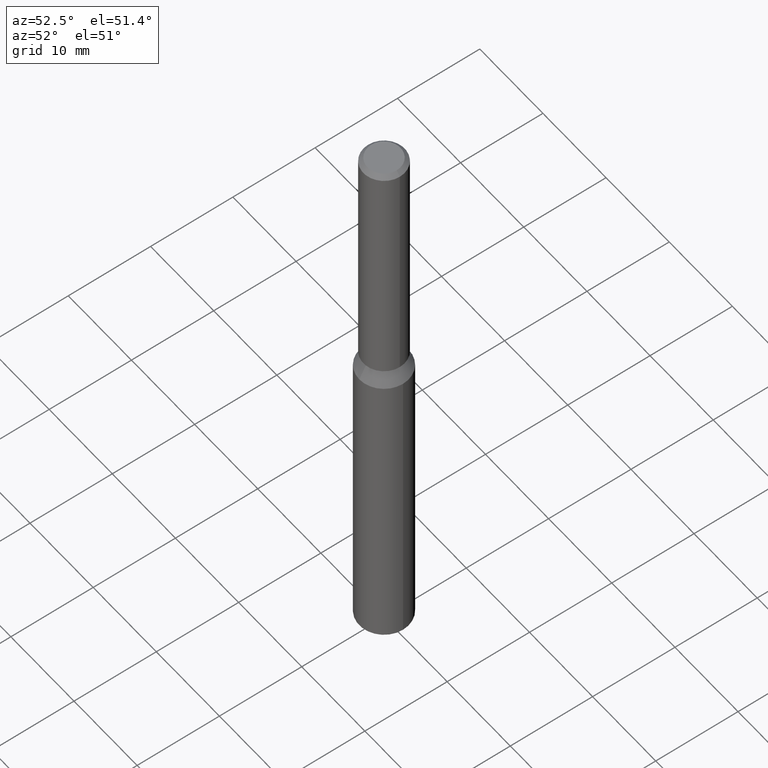
[diagram: clean part render]
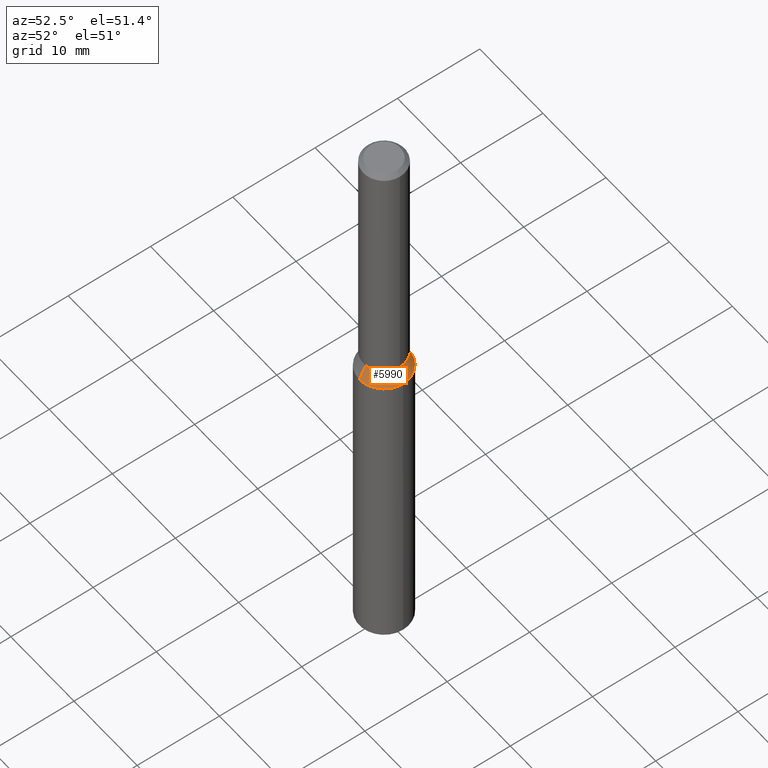
[diagram: same view with one face highlighted and labeled with its STEP entity id]
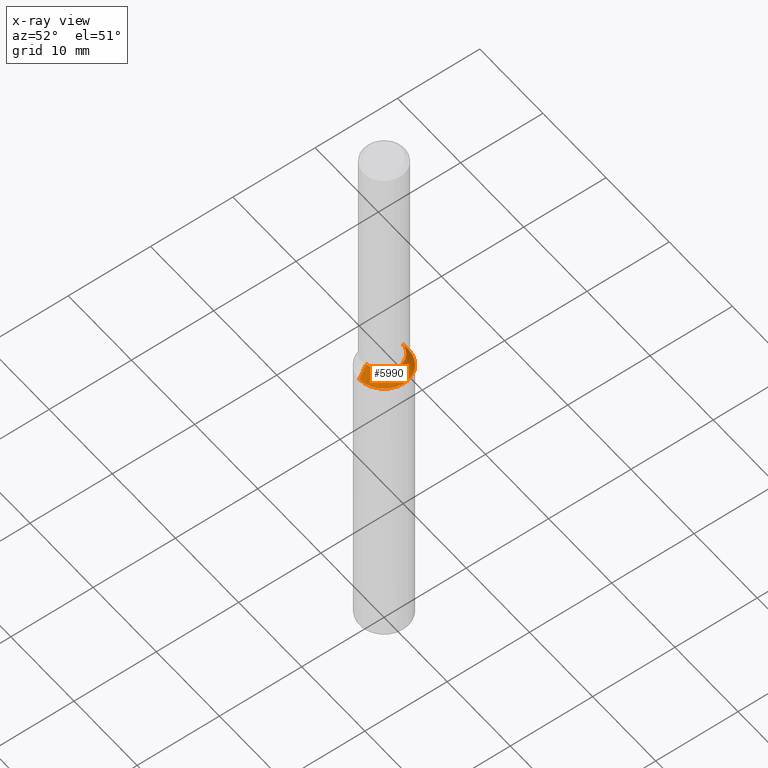
[diagram: x-ray of the same camera — body ghosted, the highlighted face saturated]
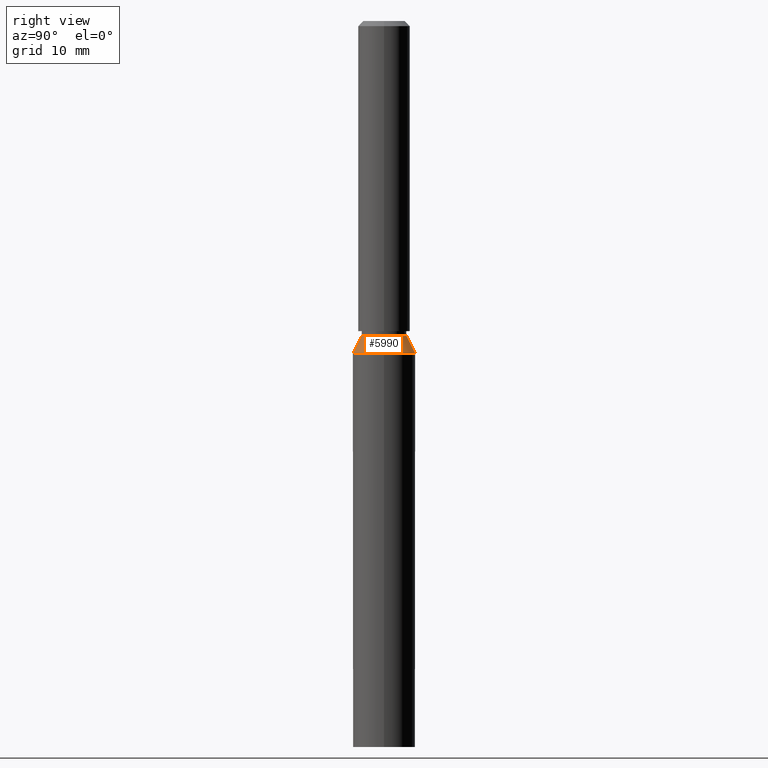
[diagram: same view with one face highlighted and labeled with its STEP entity id]
A machine part, auxiliary view. The second image highlights one B-rep face of the part: STEP entity #5990.
The next image is the same camera in x-ray: the body ghosted, the highlighted face saturated — about 0% of this face is hidden behind the body in this view.
A second angle (right view) of the same face is appended — the face is thin or edge-on in the first view.
In plain terms, the highlighted conical surface has half-angle 26.565 deg.
Its self-contained STEP definition (entity closure, byte-faithful):
#486 = VERTEX_POINT ( 'NONE', #10477 ) ;
#508 = DIRECTION ( 'NONE',  ( 0.0000000000000000000, 1.000000000000000000, 0.0000000000000000000 ) ) ;
#529 = DIRECTION ( 'NONE',  ( 0.0000000000000000000, 0.4472135954999542600, -0.8944271909999177400 ) ) ;
#854 = EDGE_CURVE ( 'NONE', #486, #10785, #6427, .T. ) ;
#1458 = CARTESIAN_POINT ( 'NONE',  ( 0.0000000000000000000, 3.000000000000005800, 38.00000000000000000 ) ) ;
#2210 = VECTOR ( 'NONE', #529, 1000.000000000000100 ) ;
#2772 = FACE_OUTER_BOUND ( 'NONE', #12353, .T. ) ;
#3470 = EDGE_CURVE ( 'NONE', #5021, #5867, #14491, .T. ) ;
#3557 = DIRECTION ( 'NONE',  ( -0.0000000000000000000, 1.967742040464204400E-018, -1.000000000000000000 ) ) ;
#3638 = ORIENTED_EDGE ( 'NONE', *, *, #4267, .T. ) ;
#3830 = CONICAL_SURFACE ( 'NONE', #4427, 3.000000000000005800, 0.4636476090008020400 ) ;
#3894 = CARTESIAN_POINT ( 'NONE',  ( 0.0000000000000000000, 3.000000000000005800, 38.00000000000000000 ) ) ;
#4142 = CARTESIAN_POINT ( 'NONE',  ( 3.000000000000005800, 3.673940397442067800E-016, 38.00000000000000000 ) ) ;
#4236 = DIRECTION ( 'NONE',  ( -0.0000000000000000000, 1.967742040464204400E-018, -1.000000000000000000 ) ) ;
#4267 = EDGE_CURVE ( 'NONE', #4976, #486, #14310, .T. ) ;
#4399 = ORIENTED_EDGE ( 'NONE', *, *, #854, .T. ) ;
#4427 = AXIS2_PLACEMENT_3D ( 'NONE', #6379, #4236, #13275 ) ;
#4689 = DIRECTION ( 'NONE',  ( 5.476786982641981900E-017, -0.4472135954999542600, -0.8944271909999177400 ) ) ;
#4976 = VERTEX_POINT ( 'NONE', #5801 ) ;
#5021 = VERTEX_POINT ( 'NONE', #1458 ) ;
#5295 = CARTESIAN_POINT ( 'NONE',  ( 0.0000000000000000000, -7.477419753763976000E-017, 38.00000000000000000 ) ) ;
#5718 = LINE ( 'NONE', #3894, #2210 ) ;
#5801 = CARTESIAN_POINT ( 'NONE',  ( 0.0000000000000000000, 2.150000000000007500, 39.70000000000001000 ) ) ;
#5867 = VERTEX_POINT ( 'NONE', #4142 ) ;
#5990 = ADVANCED_FACE ( 'NONE', ( #2772 ), #3830, .T. ) ;
#6379 = CARTESIAN_POINT ( 'NONE',  ( 0.0000000000000000000, -7.477419753763976000E-017, 38.00000000000000000 ) ) ;
#6427 = LINE ( 'NONE', #10508, #12067 ) ;
#6507 = DIRECTION ( 'NONE',  ( -0.0000000000000000000, 1.967742040464204400E-018, -1.000000000000000000 ) ) ;
#7084 = ORIENTED_EDGE ( 'NONE', *, *, #11035, .F. ) ;
#7162 = ORIENTED_EDGE ( 'NONE', *, *, #9356, .F. ) ;
#7264 = AXIS2_PLACEMENT_3D ( 'NONE', #5295, #6507, #8802 ) ;
#7550 = CARTESIAN_POINT ( 'NONE',  ( 3.673940397442066300E-016, -3.000000000000005800, 38.00000000000000000 ) ) ;
#8802 = DIRECTION ( 'NONE',  ( 0.0000000000000000000, 1.000000000000000000, 0.0000000000000000000 ) ) ;
#9356 = EDGE_CURVE ( 'NONE', #4976, #5021, #5718, .T. ) ;
#10112 = CIRCLE ( 'NONE', #11089, 3.000000000000005800 ) ;
#10256 = DIRECTION ( 'NONE',  ( 0.0000000000000000000, 1.000000000000000000, 0.0000000000000000000 ) ) ;
#10306 = CARTESIAN_POINT ( 'NONE',  ( 0.0000000000000000000, -7.477419753763976000E-017, 38.00000000000000000 ) ) ;
#10477 = CARTESIAN_POINT ( 'NONE',  ( 2.632990618166818600E-016, -2.150000000000007500, 39.70000000000001000 ) ) ;
#10508 = CARTESIAN_POINT ( 'NONE',  ( 3.673940397442066300E-016, -3.000000000000005800, 38.00000000000000000 ) ) ;
#10785 = VERTEX_POINT ( 'NONE', #7550 ) ;
#11035 = EDGE_CURVE ( 'NONE', #5867, #10785, #10112, .T. ) ;
#11089 = AXIS2_PLACEMENT_3D ( 'NONE', #10306, #3557, #10256 ) ;
#11151 = AXIS2_PLACEMENT_3D ( 'NONE', #11632, #12766, #508 ) ;
#11316 = ORIENTED_EDGE ( 'NONE', *, *, #3470, .F. ) ;
#11632 = CARTESIAN_POINT ( 'NONE',  ( 0.0000000000000000000, -7.811935900642894300E-017, 39.70000000000001000 ) ) ;
#12067 = VECTOR ( 'NONE', #4689, 1000.000000000000100 ) ;
#12353 = EDGE_LOOP ( 'NONE', ( #3638, #4399, #7084, #11316, #7162 ) ) ;
#12766 = DIRECTION ( 'NONE',  ( -0.0000000000000000000, 1.967742040464204400E-018, -1.000000000000000000 ) ) ;
#13275 = DIRECTION ( 'NONE',  ( 0.0000000000000000000, 1.000000000000000000, 0.0000000000000000000 ) ) ;
#14310 = CIRCLE ( 'NONE', #11151, 2.150000000000007500 ) ;
#14491 = CIRCLE ( 'NONE', #7264, 3.000000000000005800 ) ;